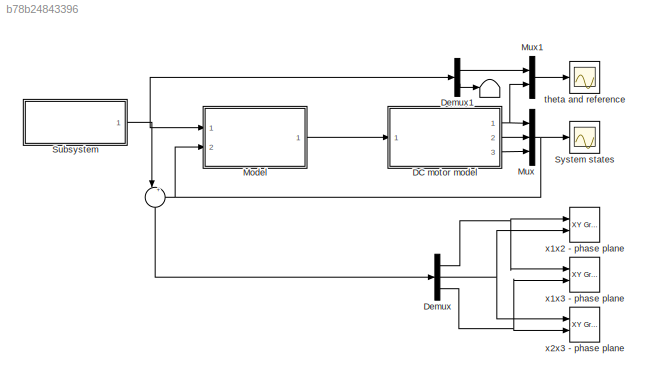
MODEL slx_b78b24843396
KIND model
CONFIG AbsTol = auto
CONFIG FixedStep = auto
CONFIG MaxStep = auto
CONFIG MinStep = auto
CONFIG RelTol = 1e-3
CONFIG SampleTimeConstraint = Unconstrained
CONFIG Solver = VariableStepAuto
CONFIG SolverMode = Auto
CONFIG SolverName = VariableStepAuto
CONFIG StartTime = 0.0
CONFIG StopTime = 20
BLOCK [Sum]  
  IconShape = round
  InputSameDT = off
  Inputs = |+-
  OutDataTypeStr = Inherit: Inherit via internal rule
  Ports = [2, 1]
  SaturateOnIntegerOverflow = off
BLOCK [Terminator]     
BLOCK [ModelReference] DC motor model
  CopyOfModelName = DC_motor_c.slx
  ModelNameDialog = DC_motor_c.slx
  ModelReferenceVersion = 1.8
  Ports = [1, 3]
  Variant = off
BLOCK [Demux] Demux
  DisplayOption = bar
  Outputs = 3
  Ports = [1, 3]
BLOCK [Demux] Demux1
  DisplayOption = bar
  Outputs = [1,2]
  Ports = [1, 2]
BLOCK [ModelReference] Model
  CopyOfModelName = SMC_linear_c.slx
  ModelNameDialog = SMC_linear_c.slx
  ModelReferenceVersion = 1.2
  Ports = [2, 1]
  Variant = off
BLOCK [Mux] Mux
  DisplayOption = bar
  Inputs = 3
  Ports = [3, 1]
BLOCK [Mux] Mux1
  DisplayOption = bar
  Inputs = 2
  Ports = [2, 1]
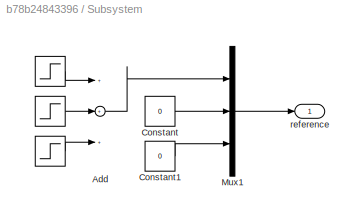
BLOCK [SubSystem] Subsystem
  Ports = [0, 1]
  RequestExecContextInheritance = off
  Variant = off
BLOCK [Step] Subsystem/ 
  SampleTime = 0
  Time = 5
BLOCK [Step] Subsystem/  
  After = -2
  SampleTime = 0
  Time = 10
BLOCK [Step] Subsystem/   
  After = 1.5
  SampleTime = 0
  Time = 15
BLOCK [Sum] Subsystem/Add
  InputSameDT = off
  Inputs = +++
  OutDataTypeStr = Inherit: Inherit via internal rule
  Ports = [3, 1]
  SaturateOnIntegerOverflow = off
BLOCK [Constant] Subsystem/Constant
  Value = 0
BLOCK [Constant] Subsystem/Constant1
  Value = 0
BLOCK [Mux] Subsystem/Mux1
  DisplayOption = bar
  Inputs = 3
  Ports = [3, 1]
BLOCK [Outport] Subsystem/reference
  IconDisplay = Port number
  PortDimensions = 3
BLOCK [Scope] System states
  Ports = [1]
  ScopeSpecificationString = Simulink.scopes.TimeScopeBlockCfg('CurrentConfiguration', extmgr.ConfigurationSet(extmgr.Configuration('Core','General UI',true),extmgr.Configuration('Core','Source UI',true),extmgr.Configuration('Sources','WiredSimulink',true),extmgr.Configuration('Visuals','Time Domain',true,'SerializedDisplays',{struct('MinYLimReal','-12.12202','MaxYLimReal','10.94022','YLabelReal','','MinYLimMag','0.00000','Ma...<+1503ch>
BLOCK [Scope] theta and reference
  Ports = [1]
  ScopeSpecificationString = Simulink.scopes.TimeScopeBlockCfg('CurrentConfiguration', extmgr.ConfigurationSet(extmgr.Configuration('Core','General UI',true),extmgr.Configuration('Core','Source UI',true),extmgr.Configuration('Sources','WiredSimulink',true,'DataLoggingVariableName','ScopeData2'),extmgr.Configuration('Visuals','Time Domain',true,'SerializedDisplays',{struct('MinYLimReal','-1.25','MaxYLimReal','1.25','YLabelReal...<+1368ch>
BLOCK [Reference] x1x2 - phase plane  REF=simulink/Sinks/XY Graph
  Ports = [2]
  SourceBlock = simulink/Sinks/XY Graph
  SourceType = XY scope.
BLOCK [Reference] x1x3 - phase plane  REF=simulink/Sinks/XY Graph
  Ports = [2]
  SourceBlock = simulink/Sinks/XY Graph
  SourceType = XY scope.
BLOCK [Reference] x2x3 - phase plane  REF=simulink/Sinks/XY Graph
  Ports = [2]
  SourceBlock = simulink/Sinks/XY Graph
  SourceType = XY scope.
LINE  :1 -> Demux:1
NET DC motor model:1 -> Mux1:2, Mux:1
LINE DC motor model:2 -> Mux:2
LINE DC motor model:3 -> Mux:3
LINE Demux1:1 -> Mux1:1
LINE Demux1:2 ->     :1
NET Demux:1 -> x1x2 - phase plane:1, x1x3 - phase plane:1
NET Demux:2 -> x1x2 - phase plane:2, x2x3 - phase plane:1
NET Demux:3 -> x1x3 - phase plane:2, x2x3 - phase plane:2
LINE Model:1 -> DC motor model:1
LINE Mux1:1 -> theta and reference:1
NET Mux:1 ->  :2, Model:2, System states:1
LINE Subsystem/   :1 -> Subsystem/Add:3
LINE Subsystem/  :1 -> Subsystem/Add:2
LINE Subsystem/ :1 -> Subsystem/Add:1
LINE Subsystem/Add:1 -> Subsystem/Mux1:1
LINE Subsystem/Constant1:1 -> Subsystem/Mux1:3
LINE Subsystem/Constant:1 -> Subsystem/Mux1:2
LINE Subsystem/Mux1:1 -> Subsystem/reference:1
NET Subsystem:1 ->  :1, Demux1:1, Model:1
note: NET lines group one-source signal fan-out (src -> all destinations, sorted); 1:1 wires keep LINE
